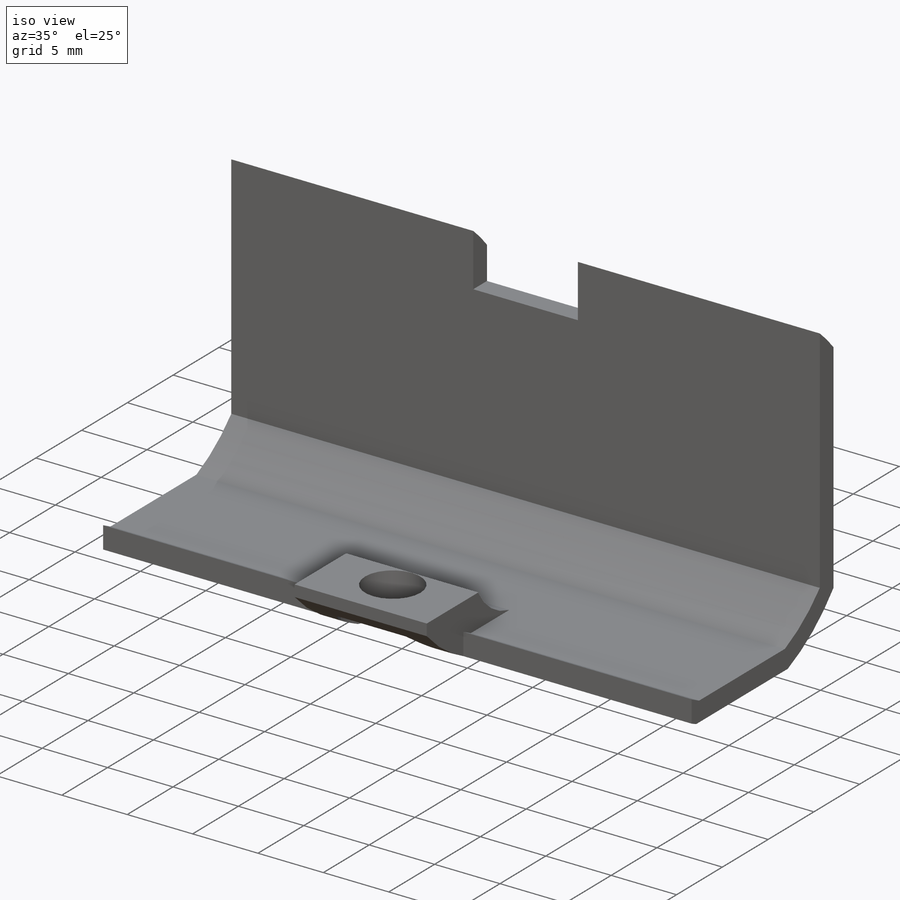
[diagram: iso view]
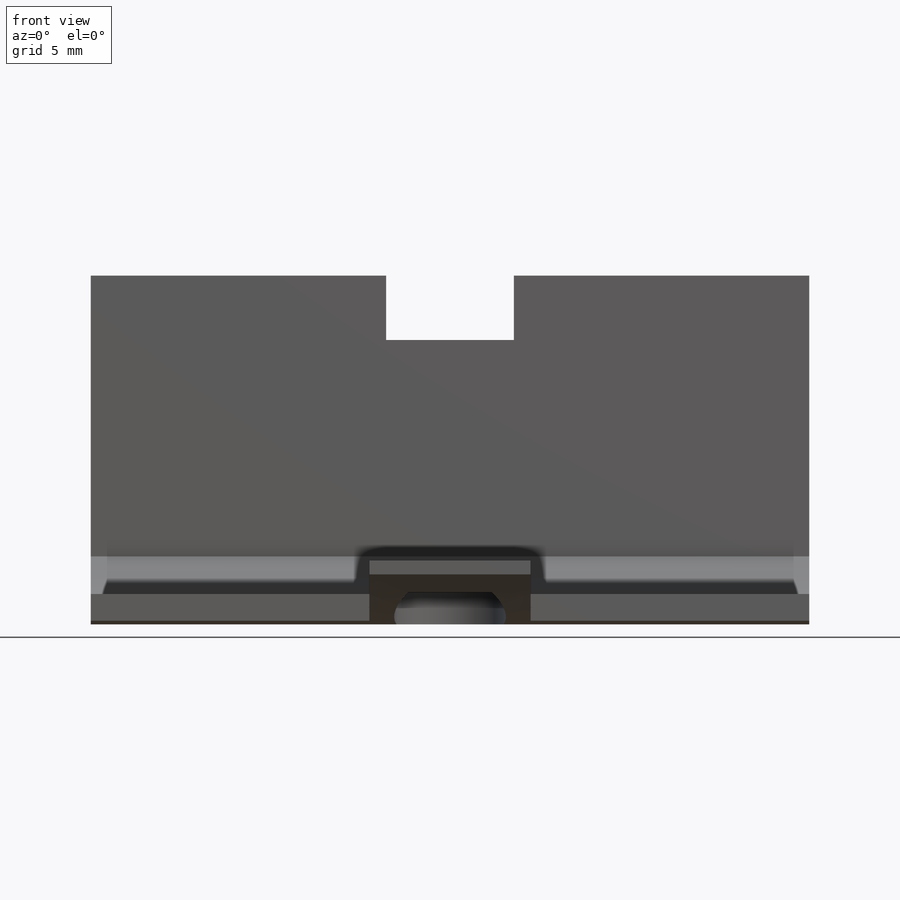
[diagram: front view]
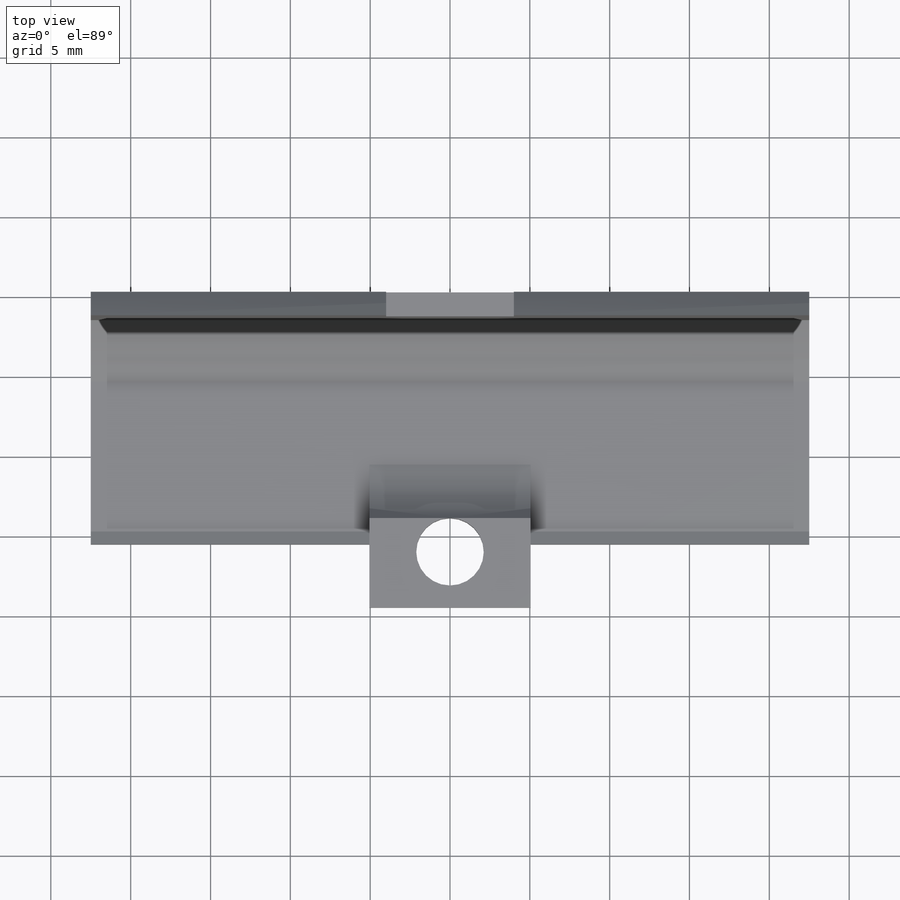
[diagram: top view]
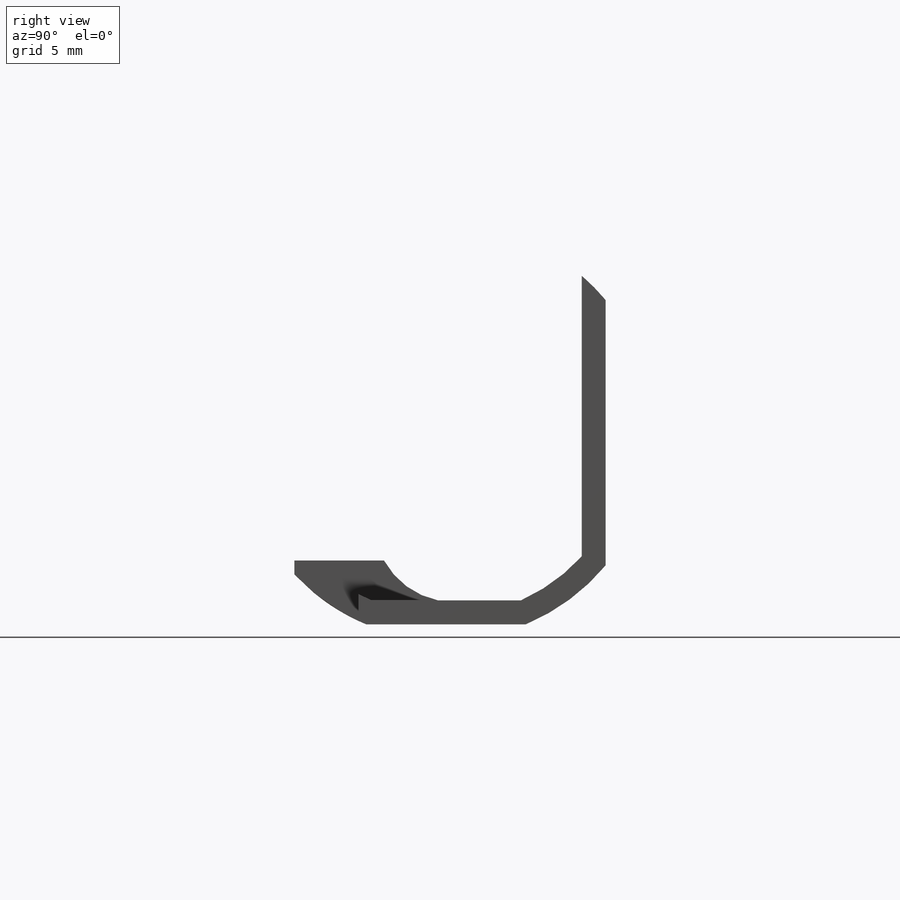
[diagram: right view]
SOLIDWORKS PART (.sldprt)
format: sldprt  version: not decoded by parser v0  size: 535,552 bytes
history: native  units: mm
features: sketch x16, cut_extrude x8, extrude x7, plane x3, move_body x2, material x1, mirror x1 (+11 scaffold rows collapsed; 1 parser-record rows omitted)
feature tree (50):
  scaffold x11  (default folders/planes/origin — collapsed)
  material  "Material <não especificado>"
  plane  "Plano frontal"
  plane  "Plano superior"
  plane  "Plano direito"
  sketch  "Esboço2"  dims[D1=0.0mm]
  parser-record x1  (decoder bookkeeping rows leaked as tree rows — omitted from the tree; the rows remain in map.json)
  sketch  "Model"  dims[D1=~0.246272mm]
  extrude  "Ressalto-extrusão2"  Depth=4mm
  sketch  "Esboço5"  dims[c1.D1=24.0mm c1.D2=0.0mm c2.D1=~24.557169mm c2.D2=~4.652281mm c3.D1=2.0mm]
  extrude  "Ressalto-extrusão3"  Depth=20mm
  sketch  "Esboço6"  dims[D1=32.5731mm]
  cut_extrude  "Corte-extrusão1"  [1 undecoded]
  sketch  "Esboço8"  dims[c1.D1=~5.927692mm c1.D2=4.23mm c2.D1=~3.599515mm c2.D2=~2.991062mm c3.D1=8.0]
  cut_extrude  "Corte-extrusão2"  [1 undecoded]
  mirror  "Espelhar1"
  sketch  "Esboço9"  dims[D1=4.0mm]
  extrude  "Ressalto-extrusão4"  Depth=4mm
  sketch  "Esboço10"  dims[c1.D1=1.5mm c1.D2=~9.652879mm c2.D1=8.0]
  cut_extrude  "Corte-extrusão3"  [1 undecoded]
  sketch  "Esboço13"  dims[c1.D3=~5.381129mm c1.D1=0.0mm c1.D2=1.5mm c2.D1=0.0mm c2.D2=1.5mm]
  extrude  "Ressalto-extrusão5"  Depth=45mm
  sketch  "Esboço14"  dims[D2=1.5mm D1=0.0mm]
  extrude  "Ressalto-extrusão6"  Depth=0.5mm
  sketch  "Esboço15"  dims[D1=~4.972486mm]
  cut_extrude  "Corte-extrusão4"  [1 undecoded]
  sketch  "Esboço17"  dims[D1=7.0mm]
  sketch  "Esboço18"  dims[D1=4.0mm]
  cut_extrude  "Corte-extrusão7"  Depth=10mm
  cut_extrude  "Corte-extrusão8"  Depth=2mm
  sketch  "Esboço21"  dims[D1=2.5mm]
  cut_extrude  "Corte-extrusão11"  [1 undecoded]
  move_body  "Corpo-Mover/Copiar1"
  sketch  "Esboço19"  dims[D1=~28.204946mm D2=~67.006666mm]
  cut_extrude  "Corte-extrusão9"  [1 undecoded]
  move_body  "Corpo-Mover/Copiar2"
  sketch  "Esboço24"  dims[D1=0.3mm]
  extrude  "suporte"  Depth=5mm
  sketch  "Esboço25"  dims[D1=~4.442375mm]
  extrude  "suporte2"  Depth=5.6mm
decode coverage: 25 of 34 modeling features carry decoded parameters
note: ~ marks probable driven/reference dimensions
note: 6 parameter values undecoded
summary: no parameter record found for 6 features
note: suppression state not decoded; provenance and decode notes live in map.json
